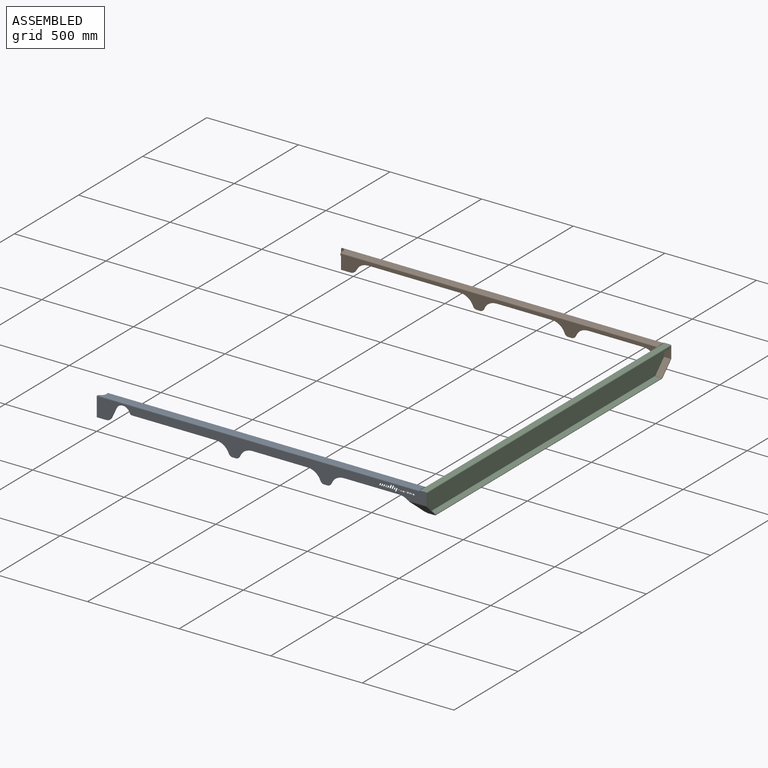
[diagram: assembled view]
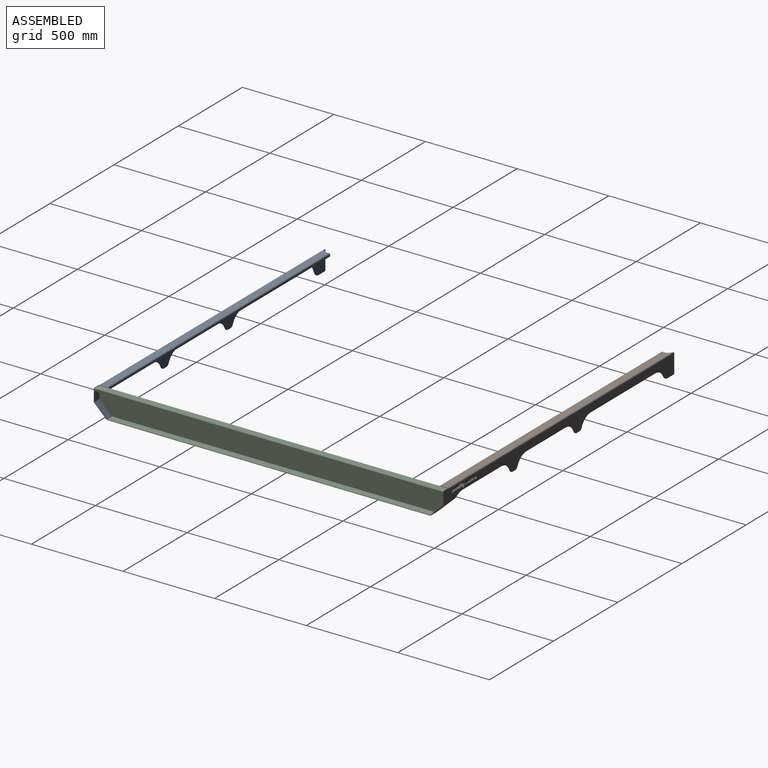
[diagram: assembled view, second angle]
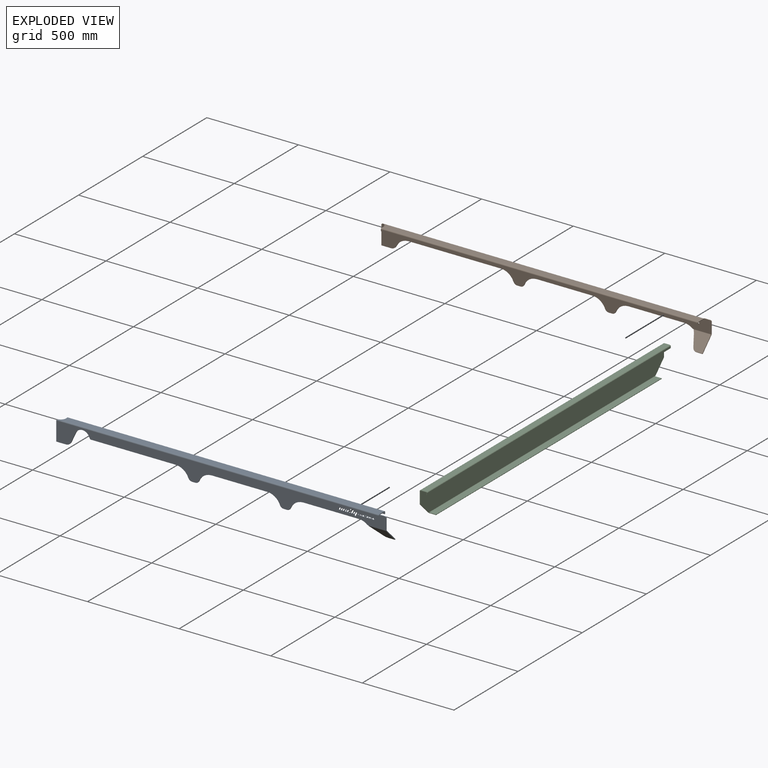
[diagram: exploded view]
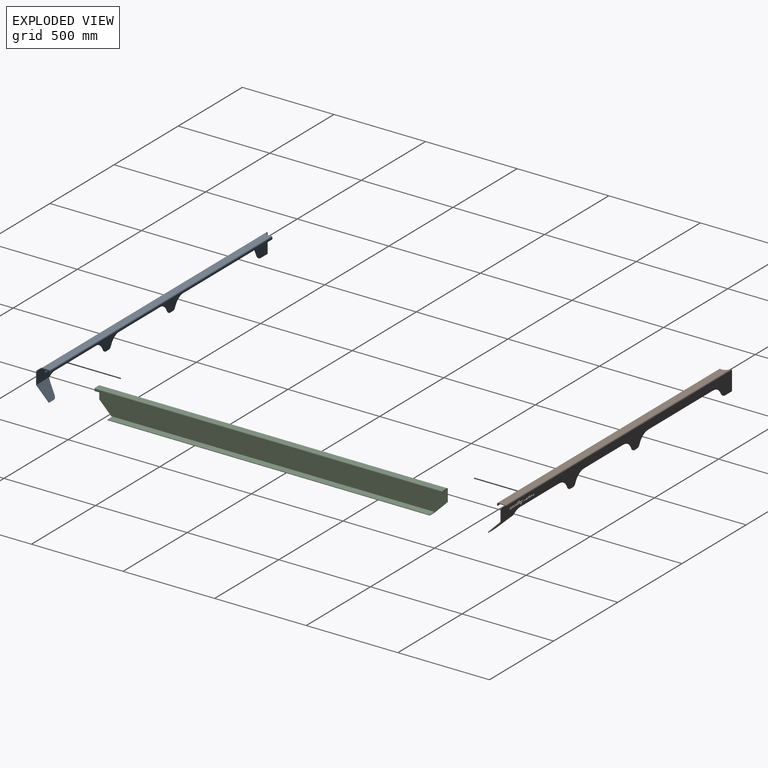
[diagram: exploded view, second angle]
ASSEMBLY  parts=3 mates=2
PART A: 165 faces, bbox 1800x72.8x140 mm
  f0: plane 4.65x4mm, normal (0,0,-1), area 18.6mm2, adj f2,f3,f114,f162
  f1: plane 34.75x4mm, normal (0,0,1), area 139mm2, adj f2,f3,f133,f136
  f2: plane 1800x110mm, normal (0,-1,0), area 93159mm2, adj f0,f1,f4,f5,f6,f7,f8,f9
  f3: plane 1800x110mm, normal (0,1,0), area 93159mm2, adj f0,f1,f4,f5,f6,f7,f8,f9
  f4: extruded ~45.17x7.42mm, area 338.8mm2, adj f2,f3,f5,f131
  f5: extruded ~44.75x4.94mm, area 261.1mm2, adj f2,f3,f4,f131
  f6: extruded ~25.06x7.64mm, area 225.7mm2, adj f2,f3,f7,f130
  f7: extruded ~37.44x10.56mm, area 397.8mm2, adj f2,f3,f6,f8
  f8: plane 4x1.42mm, normal (-1,0,0.1), area 5.7mm2, adj f2,f3,f7,f9
  f9: extruded ~8.24x4mm, area 40.2mm2, adj f2,f3,f8,f10
  f10: extruded ~25.04x4mm, area 126.9mm2, adj f2,f3,f9,f11
  f11: extruded ~12.85x7.68mm, area 122.4mm2, adj f2,f3,f10,f130
  f12: plane 4x1mm, normal (-0.91,0,0.42), area 4.4mm2, adj f2,f3,f13,f129
  f13: extruded ~4x1.27mm, area 6mm2, adj f2,f3,f12,f14
  f14: plane 4x1.06mm, normal (-0.91,0,0.42), area 4.7mm2, adj f2,f3,f13,f15
  f15: cylinder r=1.73mm len=4mm, axis (0,-1,0), area 7.9mm2, adj f2,f3,f14,f16
  f16: plane 5.79x4mm, normal (0,0,1), area 23.2mm2, adj f2,f3,f15,f17
  f17: cylinder r=0.7mm len=4mm, axis (0,-1,0), area 5.6mm2, adj f2,f3,f16,f18
  f18: plane 4x1.55mm, normal (0.91,0,-0.42), area 6.8mm2, adj f2,f3,f17,f19
  f19: cylinder r=2.08mm len=4mm, axis (0,-1,0), area 9.4mm2, adj f2,f3,f18,f129
  f20: cylinder r=0.84mm len=4mm, axis (0,-1,0), area 6.8mm2, adj f2,f3,f21,f128
  f21: plane 21.33x9.95mm, normal (0.91,0,-0.42), area 94.1mm2, adj f2,f3,f20,f22
  f22: cylinder r=0.84mm len=4mm, axis (0,-1,0), area 7.4mm2, adj f2,f3,f21,f23
  f23: plane 5.59x4mm, normal (-0.87,0,-0.5), area 25.8mm2, adj f2,f3,f22,f24
  f24: cylinder r=2.08mm len=4mm, axis (0,-1,0), area 8mm2, adj f2,f3,f23,f25
  f25: plane 13.89x6.48mm, normal (-0.91,0,0.42), area 61.3mm2, adj f2,f3,f24,f26
  f26: cylinder r=2.08mm len=4mm, axis (0,-1,0), area 9.4mm2, adj f2,f3,f25,f128
  f27: plane 4x1.23mm, normal (-0.91,0,0.42), area 5.4mm2, adj f2,f3,f28,f127
  f28: plane 7.62x4mm, normal (0,0,1), area 30.5mm2, adj f2,f3,f27,f29
  f29: cylinder r=0.84mm len=4mm, axis (0,-1,0), area 6.8mm2, adj f2,f3,f28,f30
  f30: plane 9.6x4.48mm, normal (0.91,0,-0.42), area 42.4mm2, adj f2,f3,f29,f31
  f31: cylinder r=2.08mm len=4mm, axis (0,-1,0), area 9.4mm2, adj f2,f3,f30,f32
  f32: plane 5.35x4mm, normal (0,0,-1), area 21.4mm2, adj f2,f3,f31,f33
  f33: cylinder r=0.84mm len=4mm, axis (0,-1,0), area 6.8mm2, adj f2,f3,f32,f34
  f34: plane 8.49x4mm, normal (-0.91,0,0.42), area 37.5mm2, adj f2,f3,f33,f127
  f35: cylinder r=2.08mm len=4mm, axis (0,-1,0), area 9.4mm2, adj f2,f3,f36,f126
  f36: plane 5.63x4mm, normal (0,0,1), area 22.5mm2, adj f2,f3,f35,f37
  f37: cylinder r=0.84mm len=4mm, axis (0,-1,0), area 6.8mm2, adj f2,f3,f36,f38
  f38: plane 21.33x9.95mm, normal (0.91,0,-0.42), area 94.1mm2, adj f2,f3,f37,f39
  f39: cylinder r=0.84mm len=4mm, axis (0,-1,0), area 7.4mm2, adj f2,f3,f38,f40
  f40: plane 5.59x4mm, normal (-0.87,0,-0.5), area 25.8mm2, adj f2,f3,f39,f41
  f41: cylinder r=2.08mm len=4mm, axis (0,-1,0), area 8mm2, adj f2,f3,f40,f126
  f42: plane 9.11x4.25mm, normal (0.91,0,-0.42), area 40.2mm2, adj f2,f3,f43,f125
  f43: cylinder r=2.08mm len=4mm, axis (0,-1,0), area 9.4mm2, adj f2,f3,f42,f44
  f44: plane 5.35x4mm, normal (0,0,-1), area 21.4mm2, adj f2,f3,f43,f45
  f45: cylinder r=0.84mm len=4mm, axis (0,-1,0), area 6.8mm2, adj f2,f3,f44,f46
  f46: plane 8.49x4mm, normal (-0.91,0,0.42), area 37.5mm2, adj f2,f3,f45,f47
  f47: extruded ~4x1.08mm, area 5.2mm2, adj f2,f3,f46,f48
  f48: plane 4x1.23mm, normal (-0.91,0,0.42), area 5.4mm2, adj f2,f3,f47,f49
  f49: plane 9.9x4mm, normal (0,0,1), area 39.6mm2, adj f2,f3,f48,f50
  f50: plane 4x1mm, normal (0.91,0,-0.42), area 4.4mm2, adj f2,f3,f49,f125
  f51: plane 9.11x4.25mm, normal (0.91,0,-0.42), area 40.2mm2, adj f2,f3,f52,f124
  f52: cylinder r=2.08mm len=4mm, axis (0,-1,0), area 9.4mm2, adj f2,f3,f51,f53
  f53: plane 5.35x4mm, normal (0,0,-1), area 21.4mm2, adj f2,f3,f52,f54
  f54: cylinder r=0.84mm len=4mm, axis (0,-1,0), area 6.8mm2, adj f2,f3,f53,f55
  f55: plane 9.6x4.48mm, normal (-0.91,0,0.42), area 42.4mm2, adj f2,f3,f54,f56
  f56: cylinder r=2.08mm len=4mm, axis (0,-1,0), area 9.4mm2, adj f2,f3,f55,f57
  f57: plane 7.62x4mm, normal (0,0,1), area 30.5mm2, adj f2,f3,f56,f58
  f58: plane 4x1mm, normal (0.91,0,-0.42), area 4.4mm2, adj f2,f3,f57,f124
  f59: cylinder r=0.84mm len=4mm, axis (0,-1,0), area 6.8mm2, adj f2,f3,f60,f123
  f60: plane 9.6x4.48mm, normal (-0.91,0,0.42), area 42.4mm2, adj f2,f3,f59,f61
  f61: cylinder r=2.08mm len=4mm, axis (0,-1,0), area 9.4mm2, adj f2,f3,f60,f62
  f62: plane 7.62x4mm, normal (0,0,1), area 30.5mm2, adj f2,f3,f61,f63
  f63: plane 4x1mm, normal (0.91,0,-0.42), area 4.4mm2, adj f2,f3,f62,f64
  f64: extruded ~4x1.27mm, area 6mm2, adj f2,f3,f63,f65
  f65: plane 4x2.75mm, normal (0.91,0,-0.42), area 12.1mm2, adj f2,f3,f64,f66
  f66: extruded ~4x1.08mm, area 5.2mm2, adj f2,f3,f65,f67
  f67: plane 4x1.24mm, normal (0.91,0,-0.42), area 5.5mm2, adj f2,f3,f66,f68
  f68: cylinder r=1.73mm len=4mm, axis (0,-1,0), area 7.2mm2, adj f2,f3,f67,f69
  f69: plane 4x1.94mm, normal (0.91,0,-0.42), area 8.6mm2, adj f2,f3,f68,f70
  f70: extruded ~4x1.08mm, area 5.2mm2, adj f2,f3,f69,f71
  f71: plane 4x1.23mm, normal (0.91,0,-0.42), area 5.4mm2, adj f2,f3,f70,f123
  f72: plane 4x2.75mm, normal (-0.91,0,0.42), area 12.1mm2, adj f2,f3,f73,f122
  f73: extruded ~4x1.08mm, area 5.2mm2, adj f2,f3,f72,f74
  f74: plane 4x1.23mm, normal (-0.91,0,0.42), area 5.4mm2, adj f2,f3,f73,f75
  f75: plane 7.62x4mm, normal (0,0,1), area 30.5mm2, adj f2,f3,f74,f76
  f76: cylinder r=0.84mm len=4mm, axis (0,-1,0), area 6.8mm2, adj f2,f3,f75,f77
  f77: plane 4.55x4mm, normal (0.91,0,-0.42), area 20.1mm2, adj f2,f3,f76,f78
  f78: cylinder r=1.73mm len=4mm, axis (0,-1,0), area 7.9mm2, adj f2,f3,f77,f79
  f79: plane 7.85x4mm, normal (0,0,-1), area 31.4mm2, adj f2,f3,f78,f80
  f80: plane 4x1mm, normal (-0.91,0,0.42), area 4.4mm2, adj f2,f3,f79,f122
  f81: plane 9.11x4.25mm, normal (0.91,0,-0.42), area 40.2mm2, adj f2,f3,f82,f121
  f82: cylinder r=2.08mm len=4mm, axis (0,-1,0), area 9.4mm2, adj f2,f3,f81,f83
  f83: plane 5.35x4mm, normal (0,0,-1), area 21.4mm2, adj f2,f3,f82,f84
  f84: cylinder r=0.84mm len=4mm, axis (0,-1,0), area 6.8mm2, adj f2,f3,f83,f85
  f85: plane 21.33x9.95mm, normal (-0.91,0,0.42), area 94.1mm2, adj f2,f3,f84,f86
  f86: cylinder r=0.84mm len=4mm, axis (0,-1,0), area 7.4mm2, adj f2,f3,f85,f87
  f87: plane 5.33x4mm, normal (0.87,0,0.5), area 24.6mm2, adj f2,f3,f86,f88
  f88: cylinder r=2.08mm len=4mm, axis (0,-1,0), area 8mm2, adj f2,f3,f87,f89
  f89: plane 4x2.15mm, normal (0.91,0,-0.42), area 9.5mm2, adj f2,f3,f88,f90
  f90: cylinder r=0.84mm len=4mm, axis (0,-1,0), area 5.4mm2, adj f2,f3,f89,f91
  f91: plane 4x1.07mm, normal (0.91,0,-0.42), area 4.7mm2, adj f2,f3,f90,f121
  f92: plane 4x1.23mm, normal (-0.91,0,0.42), area 5.4mm2, adj f2,f3,f93,f120
  f93: plane 7.62x4mm, normal (0,0,1), area 30.5mm2, adj f2,f3,f92,f94
  f94: cylinder r=0.84mm len=4mm, axis (0,-1,0), area 6.8mm2, adj f2,f3,f93,f95
  f95: plane 9.6x4.48mm, normal (0.91,0,-0.42), area 42.4mm2, adj f2,f3,f94,f96
  f96: cylinder r=2.08mm len=4mm, axis (0,-1,0), area 9.4mm2, adj f2,f3,f95,f97
  f97: plane 5.35x4mm, normal (0,0,-1), area 21.4mm2, adj f2,f3,f96,f98
  f98: cylinder r=0.84mm len=4mm, axis (0,-1,0), area 6.8mm2, adj f2,f3,f97,f99
  f99: plane 8.49x4mm, normal (-0.91,0,0.42), area 37.5mm2, adj f2,f3,f98,f120
  f100: cylinder r=40mm len=74.3mm, axis (0,-1,0), area 383mm2, adj f2,f3,f119,f132
  f101: plane 460.87x4mm, normal (0,0,-1), area 1843.5mm2, adj f2,f3,f102,f132
  f102: cylinder r=75mm len=69.72mm, axis (0,-1,0), area 358mm2, adj f2,f3,f101,f103
  f103: cylinder r=20mm len=18.59mm, axis (0,-1,0), area 95.5mm2, adj f2,f3,f102,f104
  f104: plane 20.33x4mm, normal (0,0,-1), area 81.3mm2, adj f2,f3,f103,f105
  f105: cylinder r=20mm len=18.59mm, axis (0,-1,0), area 95.5mm2, adj f2,f3,f104,f106
  f106: cylinder r=75mm len=69.72mm, axis (0,-1,0), area 358mm2, adj f2,f3,f105,f107
  f107: plane 303.03x4mm, normal (0,0,-1), area 1212.1mm2, adj f2,f3,f106,f108
  f108: cylinder r=75mm len=69.72mm, axis (0,-1,0), area 358mm2, adj f2,f3,f107,f109
  f109: cylinder r=20mm len=18.59mm, axis (0,-1,0), area 95.5mm2, adj f2,f3,f108,f110
  f110: plane 20.33x4mm, normal (0,0,-1), area 81.3mm2, adj f2,f3,f109,f111
  f111: cylinder r=20mm len=18.59mm, axis (0,-1,0), area 95.5mm2, adj f2,f3,f110,f112
  f112: cylinder r=75mm len=69.72mm, axis (0,-1,0), area 358mm2, adj f2,f3,f111,f113
  f113: plane 303.03x4mm, normal (0,0,-1), area 1212.1mm2, adj f2,f3,f112,f114
  f114: cylinder r=75mm len=48.17mm, axis (0,-1,0), area 209.2mm2, adj f0,f2,f3,f113
  f115: plane 62.51x4mm, normal (1,0,0), area 250.1mm2, adj f2,f3,f133,f161
  f116: plane 104x4mm, normal (-1,0,0), area 416mm2, adj f2,f3,f117,f150
  f117: plane 53.62x4mm, normal (0,0,-1), area 214.5mm2, adj f2,f3,f116,f118
  f118: cylinder r=30mm len=27.11mm, axis (0,-1,0), area 135.3mm2, adj f2,f3,f117,f119
  f119: plane 55x26.09mm, normal (0.9,0,-0.43), area 243.5mm2, adj f2,f3,f100,f118
  f120: extruded ~4x1.08mm, area 5.2mm2, adj f2,f3,f92,f99
  f121: extruded ~4x1.27mm, area 6mm2, adj f2,f3,f81,f91
  f122: extruded ~4x1.27mm, area 6mm2, adj f2,f3,f72,f80
  f123: plane 7.62x4mm, normal (0,0,-1), area 30.5mm2, adj f2,f3,f59,f71
  f124: extruded ~4x1.27mm, area 6mm2, adj f2,f3,f51,f58
  f125: extruded ~4x1.27mm, area 6mm2, adj f2,f3,f42,f50
  f126: plane 13.89x6.48mm, normal (-0.91,0,0.42), area 61.3mm2, adj f2,f3,f35,f41
  f127: extruded ~4x1.08mm, area 5.2mm2, adj f2,f3,f27,f34
  f128: plane 5.63x4mm, normal (0,0,1), area 22.5mm2, adj f2,f3,f20,f26
  f129: plane 7.62x4mm, normal (0,0,-1), area 30.5mm2, adj f2,f3,f12,f19
  f130: extruded ~10.35x4.23mm, area 84.9mm2, adj f2,f3,f6,f11
  f131: plane 4x1.36mm, normal (1,0,-0.1), area 5.5mm2, adj f2,f3,f4,f5
  f132: cylinder r=10mm len=9.54mm, axis (0,-1,0), area 50.6mm2, adj f2,f3,f100,f101
  f133: cylinder r=5mm len=5mm, axis (0,-1,0), area 31.4mm2, adj f1,f2,f3,f115
  f134: plane 4x2mm, normal (1,0,0), area 8mm2, adj f2,f3,f135,f151
  f135: cylinder r=0.12mm len=4mm, axis (0,1,0), area 1.6mm2, adj f2,f3,f134,f136
  f136: plane 8x4mm, normal (-1,0,0), area 32mm2, adj f1,f2,f3,f135
  f137: cylinder r=30.5mm len=38mm, axis (0,0,1), area 185.9mm2, adj f139,f140,f146,f150
  f138: plane 38x4mm, normal (1,0,0), area 152mm2, adj f139,f140,f147,f151
  f139: plane 1749.14x38mm, normal (0,0,1), area 65879mm2, adj f137,f138,f148,f152
  f140: plane 1749.14x38mm, normal (0,0,-1), area 65879mm2, adj f137,f138,f149,f153
  f141: plane 9x4mm, normal (1,0,0), area 36mm2, adj f142,f144,f145,f147
  f142: plane 1731.02x4mm, normal (0,0,-1), area 6924.1mm2, adj f141,f143,f144,f145
  f143: plane 9x4mm, normal (-1,0,0), area 36mm2, adj f142,f144,f145,f146
  f144: plane 1731.02x9mm, normal (0,1,0), area 15579.2mm2, adj f141,f142,f143,f148
  f145: plane 1731.02x9mm, normal (0,-1,0), area 15579.2mm2, adj f141,f142,f143,f149
  f146: plane 6x6mm, normal (-1,0,0), area 25.1mm2, adj f137,f143,f148,f149
  f147: plane 6x6mm, normal (1,0,0), area 25.1mm2, adj f138,f141,f148,f149
  f148: cylinder r=6mm len=1731.02mm, axis (-1,0,0), area 16314.5mm2, adj f139,f144,f146,f147
  f149: cylinder r=2mm len=1731.02mm, axis (-1,0,0), area 5438.2mm2, adj f140,f145,f146,f147
  f150: bspline ~10.86x6mm, area 52.1mm2, adj f116,f137,f152,f153
  f151: plane 6x6mm, normal (1,0,0), area 25.1mm2, adj f134,f138,f152,f153
  f152: cylinder r=6mm len=1760mm, axis (-1,0,0), area 16549.5mm2, adj f2,f139,f150,f151
  f153: cylinder r=2mm len=1760mm, axis (-1,0,0), area 5516.4mm2, adj f3,f140,f150,f151
  f154: extruded ~15.77x15.77mm, area 84.4mm2, adj f155,f159,f160,f162
  f155: plane 46.56x46.56mm, normal (-0.91,0.29,-0.29), area 271.3mm2, adj f154,f156,f159,f160
  f156: extruded ~21.08x14.4mm, area 112.9mm2, adj f155,f157,f159,f160
  f157: plane 36.29x2.83mm, normal (0,0.71,-0.71), area 145.1mm2, adj f156,f158,f159,f160
  f158: plane 71.07x71.07mm, normal (1,0,0), area 386mm2, adj f157,f159,f160,f161
  f159: plane 95.66x68.24mm, normal (0,-0.71,-0.71), area 6894.8mm2, adj f154,f155,f156,f157,f158,f163
  f160: plane 95.66x68.24mm, normal (0,0.71,0.71), area 6894.8mm2, adj f154,f155,f156,f157,f158,f164
  f161: plane 4.59x4.24mm, normal (1,0,0), area 12.6mm2, adj f115,f158,f163,f164
  f162: plane 4.59x4.24mm, normal (-1,0,0), area 12.6mm2, adj f0,f154,f163,f164
  f163: cylinder r=6mm len=95.66mm, axis (1,0,0), area 450.8mm2, adj f2,f159,f161,f162
  f164: cylinder r=2mm len=95.66mm, axis (1,0,0), area 150.3mm2, adj f3,f160,f161,f162
PART B: 163 faces, bbox 1800x72.8x140 mm
  f0: cylinder r=0.84mm len=4mm, axis (0,1,0), area 6.8mm2, adj f1,f128,f129,f130
  f1: plane 21.33x9.95mm, normal (-0.91,0,-0.42), area 94.1mm2, adj f0,f2,f129,f130
  f2: cylinder r=0.84mm len=4mm, axis (0,1,0), area 7.4mm2, adj f1,f3,f129,f130
  f3: plane 5.59x4mm, normal (0.87,0,-0.5), area 25.8mm2, adj f2,f4,f129,f130
  f4: cylinder r=2.08mm len=4mm, axis (0,1,0), area 8mm2, adj f3,f5,f129,f130
  f5: plane 13.89x6.48mm, normal (0.91,0,0.42), area 61.3mm2, adj f4,f6,f129,f130
  f6: cylinder r=2.08mm len=4mm, axis (0,1,0), area 9.4mm2, adj f5,f128,f129,f130
  f7: plane 7.62x4mm, normal (0,0,-1), area 30.5mm2, adj f8,f127,f129,f130
  f8: cylinder r=0.84mm len=4mm, axis (0,1,0), area 6.8mm2, adj f7,f9,f129,f130
  f9: plane 9.6x4.48mm, normal (0.91,0,0.42), area 42.4mm2, adj f8,f10,f129,f130
  f10: cylinder r=2.08mm len=4mm, axis (0,1,0), area 9.4mm2, adj f9,f11,f129,f130
  f11: plane 7.62x4mm, normal (0,0,1), area 30.5mm2, adj f10,f12,f129,f130
  f12: plane 4x1mm, normal (-0.91,0,-0.42), area 4.4mm2, adj f11,f13,f129,f130
  f13: extruded ~4x1.27mm, area 6mm2, adj f12,f14,f129,f130
  f14: plane 4x2.75mm, normal (-0.91,0,-0.42), area 12.1mm2, adj f13,f15,f129,f130
  f15: extruded ~4x1.08mm, area 5.2mm2, adj f14,f16,f129,f130
  f16: plane 4x1.24mm, normal (-0.91,0,-0.42), area 5.5mm2, adj f15,f17,f129,f130
  f17: cylinder r=1.73mm len=4mm, axis (0,1,0), area 7.2mm2, adj f16,f18,f129,f130
  f18: plane 4x1.94mm, normal (-0.91,0,-0.42), area 8.6mm2, adj f17,f19,f129,f130
  f19: extruded ~4x1.08mm, area 5.2mm2, adj f18,f127,f129,f130
  f20: extruded ~4x1.08mm, area 5.2mm2, adj f21,f126,f129,f130
  f21: plane 4x1.23mm, normal (0.91,0,0.42), area 5.4mm2, adj f20,f22,f129,f130
  f22: plane 7.62x4mm, normal (0,0,1), area 30.5mm2, adj f21,f23,f129,f130
  f23: cylinder r=0.84mm len=4mm, axis (0,1,0), area 6.8mm2, adj f22,f24,f129,f130
  f24: plane 9.6x4.48mm, normal (-0.91,0,-0.42), area 42.4mm2, adj f23,f25,f129,f130
  f25: cylinder r=2.08mm len=4mm, axis (0,1,0), area 9.4mm2, adj f24,f26,f129,f130
  f26: plane 5.35x4mm, normal (0,0,-1), area 21.4mm2, adj f25,f27,f129,f130
  f27: cylinder r=0.84mm len=4mm, axis (0,1,0), area 6.8mm2, adj f26,f126,f129,f130
  f28: cylinder r=2.08mm len=4mm, axis (0,1,0), area 9.4mm2, adj f29,f125,f129,f130
  f29: plane 5.63x4mm, normal (0,0,1), area 22.5mm2, adj f28,f30,f129,f130
  f30: cylinder r=0.84mm len=4mm, axis (0,1,0), area 6.8mm2, adj f29,f31,f129,f130
  f31: plane 21.33x9.95mm, normal (-0.91,0,-0.42), area 94.1mm2, adj f30,f32,f129,f130
  f32: cylinder r=0.84mm len=4mm, axis (0,1,0), area 7.4mm2, adj f31,f33,f129,f130
  f33: plane 5.59x4mm, normal (0.87,0,-0.5), area 25.8mm2, adj f32,f34,f129,f130
  f34: cylinder r=2.08mm len=4mm, axis (0,1,0), area 8mm2, adj f33,f125,f129,f130
  f35: extruded ~4x1.27mm, area 6mm2, adj f36,f124,f129,f130
  f36: plane 9.11x4.25mm, normal (-0.91,0,-0.42), area 40.2mm2, adj f35,f37,f129,f130
  f37: cylinder r=2.08mm len=4mm, axis (0,1,0), area 9.4mm2, adj f36,f38,f129,f130
  f38: plane 5.35x4mm, normal (0,0,-1), area 21.4mm2, adj f37,f39,f129,f130
  f39: cylinder r=0.84mm len=4mm, axis (0,1,0), area 6.8mm2, adj f38,f40,f129,f130
  f40: plane 9.6x4.48mm, normal (0.91,0,0.42), area 42.4mm2, adj f39,f41,f129,f130
  f41: cylinder r=2.08mm len=4mm, axis (0,1,0), area 9.4mm2, adj f40,f42,f129,f130
  f42: plane 7.62x4mm, normal (0,0,1), area 30.5mm2, adj f41,f124,f129,f130
  f43: extruded ~4x1.27mm, area 6mm2, adj f44,f123,f129,f130
  f44: plane 9.11x4.25mm, normal (-0.91,0,-0.42), area 40.2mm2, adj f43,f45,f129,f130
  f45: cylinder r=2.08mm len=4mm, axis (0,1,0), area 9.4mm2, adj f44,f46,f129,f130
  f46: plane 5.35x4mm, normal (0,0,-1), area 21.4mm2, adj f45,f47,f129,f130
  f47: cylinder r=0.84mm len=4mm, axis (0,1,0), area 6.8mm2, adj f46,f48,f129,f130
  f48: plane 8.49x4mm, normal (0.91,0,0.42), area 37.5mm2, adj f47,f49,f129,f130
  f49: extruded ~4x1.08mm, area 5.2mm2, adj f48,f50,f129,f130
  f50: plane 4x1.23mm, normal (0.91,0,0.42), area 5.4mm2, adj f49,f51,f129,f130
  f51: plane 9.9x4mm, normal (0,0,1), area 39.6mm2, adj f50,f123,f129,f130
  f52: plane 4x2.75mm, normal (0.91,0,0.42), area 12.1mm2, adj f53,f122,f129,f130
  f53: extruded ~4x1.08mm, area 5.2mm2, adj f52,f54,f129,f130
  f54: plane 4x1.23mm, normal (0.91,0,0.42), area 5.4mm2, adj f53,f55,f129,f130
  f55: plane 7.62x4mm, normal (0,0,1), area 30.5mm2, adj f54,f56,f129,f130
  f56: cylinder r=0.84mm len=4mm, axis (0,1,0), area 6.8mm2, adj f55,f57,f129,f130
  f57: plane 4.55x4mm, normal (-0.91,0,-0.42), area 20.1mm2, adj f56,f58,f129,f130
  f58: cylinder r=1.73mm len=4mm, axis (0,1,0), area 7.9mm2, adj f57,f59,f129,f130
  f59: plane 7.85x4mm, normal (0,0,-1), area 31.4mm2, adj f58,f60,f129,f130
  f60: plane 4x1mm, normal (0.91,0,0.42), area 4.4mm2, adj f59,f122,f129,f130
  f61: plane 4x1mm, normal (0.91,0,0.42), area 4.4mm2, adj f62,f121,f129,f130
  f62: extruded ~4x1.27mm, area 6mm2, adj f61,f63,f129,f130
  f63: plane 4x1.06mm, normal (0.91,0,0.42), area 4.7mm2, adj f62,f64,f129,f130
  f64: cylinder r=1.73mm len=4mm, axis (0,1,0), area 7.9mm2, adj f63,f65,f129,f130
  f65: plane 5.79x4mm, normal (0,0,1), area 23.2mm2, adj f64,f66,f129,f130
  f66: cylinder r=0.7mm len=4mm, axis (0,1,0), area 5.6mm2, adj f65,f67,f129,f130
  f67: plane 4x1.55mm, normal (-0.91,0,-0.42), area 6.8mm2, adj f66,f68,f129,f130
  f68: cylinder r=2.08mm len=4mm, axis (0,1,0), area 9.4mm2, adj f67,f121,f129,f130
  f69: extruded ~45.17x7.42mm, area 338.8mm2, adj f70,f120,f129,f130
  f70: extruded ~44.75x4.94mm, area 261.1mm2, adj f69,f120,f129,f130
  f71: extruded ~25.06x7.64mm, area 225.7mm2, adj f72,f119,f129,f130
  f72: extruded ~37.44x10.56mm, area 397.8mm2, adj f71,f73,f129,f130
  f73: plane 4x1.42mm, normal (1,0,0.1), area 5.7mm2, adj f72,f74,f129,f130
  f74: extruded ~8.24x4mm, area 40.2mm2, adj f73,f75,f129,f130
  f75: extruded ~25.04x4mm, area 126.9mm2, adj f74,f76,f129,f130
  f76: extruded ~12.85x7.68mm, area 122.4mm2, adj f75,f119,f129,f130
  f77: plane 9.11x4.25mm, normal (-0.91,0,-0.42), area 40.2mm2, adj f78,f118,f129,f130
  f78: cylinder r=2.08mm len=4mm, axis (0,1,0), area 9.4mm2, adj f77,f79,f129,f130
  f79: plane 5.35x4mm, normal (0,0,-1), area 21.4mm2, adj f78,f80,f129,f130
  f80: cylinder r=0.84mm len=4mm, axis (0,1,0), area 6.8mm2, adj f79,f81,f129,f130
  f81: plane 21.33x9.95mm, normal (0.91,0,0.42), area 94.1mm2, adj f80,f82,f129,f130
  f82: cylinder r=0.84mm len=4mm, axis (0,1,0), area 7.4mm2, adj f81,f83,f129,f130
  f83: plane 5.33x4mm, normal (-0.87,0,0.5), area 24.6mm2, adj f82,f84,f129,f130
  f84: cylinder r=2.08mm len=4mm, axis (0,1,0), area 8mm2, adj f83,f85,f129,f130
  f85: plane 4x2.15mm, normal (-0.91,0,-0.42), area 9.5mm2, adj f84,f86,f129,f130
  f86: cylinder r=0.84mm len=4mm, axis (0,1,0), area 5.4mm2, adj f85,f87,f129,f130
  f87: plane 4x1.07mm, normal (-0.91,0,-0.42), area 4.7mm2, adj f86,f118,f129,f130
  f88: extruded ~4x1.08mm, area 5.2mm2, adj f89,f117,f129,f130
  f89: plane 4x1.23mm, normal (0.91,0,0.42), area 5.4mm2, adj f88,f90,f129,f130
  f90: plane 7.62x4mm, normal (0,0,1), area 30.5mm2, adj f89,f91,f129,f130
  f91: cylinder r=0.84mm len=4mm, axis (0,1,0), area 6.8mm2, adj f90,f92,f129,f130
  f92: plane 9.6x4.48mm, normal (-0.91,0,-0.42), area 42.4mm2, adj f91,f93,f129,f130
  f93: cylinder r=2.08mm len=4mm, axis (0,1,0), area 9.4mm2, adj f92,f94,f129,f130
  f94: plane 5.35x4mm, normal (0,0,-1), area 21.4mm2, adj f93,f95,f129,f130
  f95: cylinder r=0.84mm len=4mm, axis (0,1,0), area 6.8mm2, adj f94,f117,f129,f130
  f96: cylinder r=75mm len=69.72mm, axis (0,1,0), area 358mm2, adj f97,f116,f129,f130
  f97: cylinder r=20mm len=18.59mm, axis (0,1,0), area 95.5mm2, adj f96,f98,f129,f130
  f98: plane 20.33x4mm, normal (0,0,-1), area 81.3mm2, adj f97,f99,f129,f130
  f99: cylinder r=20mm len=18.59mm, axis (0,1,0), area 95.5mm2, adj f98,f100,f129,f130
  f100: cylinder r=75mm len=69.72mm, axis (0,1,0), area 358mm2, adj f99,f101,f129,f130
  f101: plane 303.03x4mm, normal (0,0,-1), area 1212.1mm2, adj f100,f102,f129,f130
  f102: cylinder r=75mm len=69.72mm, axis (0,1,0), area 358mm2, adj f101,f103,f129,f130
  f103: cylinder r=20mm len=18.59mm, axis (0,1,0), area 95.5mm2, adj f102,f104,f129,f130
  f104: plane 20.33x4mm, normal (0,0,-1), area 81.3mm2, adj f103,f105,f129,f130
  f105: cylinder r=20mm len=18.59mm, axis (0,1,0), area 95.5mm2, adj f104,f106,f129,f130
  f106: cylinder r=75mm len=69.72mm, axis (0,1,0), area 358mm2, adj f105,f107,f129,f130
  f107: plane 503.03x4mm, normal (0,0,-1), area 2012.1mm2, adj f106,f108,f129,f130
  f108: cylinder r=75mm len=67.76mm, axis (0,1,0), area 338.4mm2, adj f107,f109,f129,f130
  f109: cylinder r=30mm len=27.11mm, axis (0,1,0), area 135.3mm2, adj f108,f110,f129,f130
  f110: plane 53.62x4mm, normal (0,0,-1), area 214.5mm2, adj f109,f111,f129,f130
  f111: plane 104x4mm, normal (-1,0,0), area 416mm2, adj f110,f129,f130,f148
  f112: plane 34.75x4mm, normal (0,0,1), area 139mm2, adj f129,f130,f131,f133
  f113: plane 62.51x4mm, normal (1,0,0), area 250.1mm2, adj f129,f130,f131,f159
  f114: plane 4.65x4mm, normal (0,0,-1), area 18.6mm2, adj f115,f129,f130,f160
  f115: cylinder r=75mm len=48.17mm, axis (0,1,0), area 209.2mm2, adj f114,f116,f129,f130
  f116: plane 303.03x4mm, normal (0,0,-1), area 1212.1mm2, adj f96,f115,f129,f130
  f117: plane 8.49x4mm, normal (0.91,0,0.42), area 37.5mm2, adj f88,f95,f129,f130
  f118: extruded ~4x1.27mm, area 6mm2, adj f77,f87,f129,f130
  f119: extruded ~10.35x4.23mm, area 84.9mm2, adj f71,f76,f129,f130
  f120: plane 4x1.36mm, normal (-1,0,-0.1), area 5.5mm2, adj f69,f70,f129,f130
  f121: plane 7.62x4mm, normal (0,0,-1), area 30.5mm2, adj f61,f68,f129,f130
  f122: extruded ~4x1.27mm, area 6mm2, adj f52,f60,f129,f130
  f123: plane 4x1mm, normal (-0.91,0,-0.42), area 4.4mm2, adj f43,f51,f129,f130
  f124: plane 4x1mm, normal (-0.91,0,-0.42), area 4.4mm2, adj f35,f42,f129,f130
  f125: plane 13.89x6.48mm, normal (0.91,0,0.42), area 61.3mm2, adj f28,f34,f129,f130
  f126: plane 8.49x4mm, normal (0.91,0,0.42), area 37.5mm2, adj f20,f27,f129,f130
  f127: plane 4x1.23mm, normal (-0.91,0,-0.42), area 5.4mm2, adj f7,f19,f129,f130
  f128: plane 5.63x4mm, normal (0,0,1), area 22.5mm2, adj f0,f6,f129,f130
  f129: plane 1800x110mm, normal (0,1,0), area 95679.6mm2, adj f0,f1,f2,f3,f4,f5,f6,f7
  f130: plane 1800x110mm, normal (0,-1,0), area 95679.6mm2, adj f0,f1,f2,f3,f4,f5,f6,f7
  f131: cylinder r=5mm len=5mm, axis (0,1,0), area 31.4mm2, adj f112,f113,f129,f130
  f132: plane 4x2mm, normal (1,0,0), area 8mm2, adj f129,f130,f134,f149
  f133: plane 8x4mm, normal (-1,0,0), area 32mm2, adj f112,f129,f130,f134
  f134: cylinder r=0.12mm len=4mm, axis (0,-1,0), area 1.6mm2, adj f129,f130,f132,f133
  f135: cylinder r=30.5mm len=38mm, axis (0,0,1), area 185.9mm2, adj f137,f138,f144,f148
  f136: plane 38x4mm, normal (1,0,0), area 152mm2, adj f137,f138,f145,f149
  f137: plane 1749.14x38mm, normal (0,0,1), area 65879mm2, adj f135,f136,f146,f150
  f138: plane 1749.14x38mm, normal (0,0,-1), area 65879mm2, adj f135,f136,f147,f151
  f139: plane 9x4mm, normal (1,0,0), area 36mm2, adj f141,f142,f143,f145
  f140: plane 9x4mm, normal (-1,0,0), area 36mm2, adj f141,f142,f143,f144
  f141: plane 1731.02x4mm, normal (0,0,-1), area 6924.1mm2, adj f139,f140,f142,f143
  f142: plane 1731.02x9mm, normal (0,-1,0), area 15579.2mm2, adj f139,f140,f141,f146
  f143: plane 1731.02x9mm, normal (0,1,0), area 15579.2mm2, adj f139,f140,f141,f147
  f144: plane 6x6mm, normal (-1,0,0), area 25.1mm2, adj f135,f140,f146,f147
  f145: plane 6x6mm, normal (1,0,0), area 25.1mm2, adj f136,f139,f146,f147
  f146: cylinder r=6mm len=1731.02mm, axis (-1,0,0), area 16314.5mm2, adj f137,f142,f144,f145
  f147: cylinder r=2mm len=1731.02mm, axis (-1,0,0), area 5438.2mm2, adj f138,f143,f144,f145
  f148: bspline ~10.86x6mm, area 51.9mm2, adj f111,f135,f150,f151
  f149: plane 6x6mm, normal (1,0,0), area 25.1mm2, adj f132,f136,f150,f151
  f150: cylinder r=6mm len=1760mm, axis (-1,0,0), area 16549.5mm2, adj f129,f137,f148,f149
  f151: cylinder r=2mm len=1760mm, axis (-1,0,0), area 5516.5mm2, adj f130,f138,f148,f149
  f152: plane 46.56x46.56mm, normal (-0.91,-0.29,-0.29), area 271.3mm2, adj f153,f156,f157,f158
  f153: extruded ~15.77x15.77mm, area 84.4mm2, adj f152,f157,f158,f160
  f154: plane 71.07x71.07mm, normal (1,0,0), area 386mm2, adj f155,f157,f158,f159
  f155: plane 36.29x2.83mm, normal (0,-0.71,-0.71), area 145.1mm2, adj f154,f156,f157,f158
  f156: extruded ~21.08x14.4mm, area 112.9mm2, adj f152,f155,f157,f158
  f157: plane 95.66x68.24mm, normal (0,0.71,-0.71), area 6894.8mm2, adj f152,f153,f154,f155,f156,f161
  f158: plane 95.66x68.24mm, normal (0,-0.71,0.71), area 6894.8mm2, adj f152,f153,f154,f155,f156,f162
  f159: plane 4.59x4.24mm, normal (1,0,0), area 12.6mm2, adj f113,f154,f161,f162
  f160: plane 4.59x4.24mm, normal (-1,0,0), area 12.6mm2, adj f114,f153,f161,f162
  f161: cylinder r=6mm len=95.66mm, axis (1,0,0), area 450.8mm2, adj f129,f157,f159,f160
  f162: cylinder r=2mm len=95.66mm, axis (1,0,0), area 150.3mm2, adj f130,f158,f159,f160
PART C: 32 faces, bbox 1900x40x140 mm
  f0: plane 1760x3mm, normal (0,-1,0), area 5280mm2, adj f1,f2,f3,f4
  f1: plane 35x3mm, normal (1,0,0), area 105mm2, adj f0,f3,f4,f29
  f2: plane 35x3mm, normal (-1,0,0), area 105mm2, adj f0,f3,f4,f28
  f3: plane 1760x35mm, normal (0,0,1), area 61600mm2, adj f0,f1,f2,f31
  f4: plane 1760x35mm, normal (0,0,-1), area 61600mm2, adj f0,f1,f2,f30
  f5: plane 65x65mm, normal (0.71,0,-0.71), area 275.8mm2, adj f6,f9,f10,f29
  f6: plane 65x3mm, normal (1,0,0), area 195mm2, adj f5,f9,f10,f25
  f7: plane 65x3mm, normal (-1,0,0), area 195mm2, adj f8,f9,f10,f24
  f8: plane 65x65mm, normal (-0.71,0,-0.71), area 275.8mm2, adj f7,f9,f10,f28
  f9: plane 1900x130mm, normal (0,-1,0), area 242775mm2, adj f5,f6,f7,f8,f27,f31
  f10: plane 1900x130mm, normal (0,1,0), area 242775mm2, adj f5,f6,f7,f8,f26,f30
  f11: plane 30x3mm, normal (1,0,0), area 90mm2, adj f13,f14,f21,f25
  f12: plane 30x3mm, normal (-1,0,0), area 90mm2, adj f13,f14,f20,f24
  f13: plane 1900x30mm, normal (0,0,-1), area 57000mm2, adj f11,f12,f23,f27
  f14: plane 1900x30mm, normal (0,0,1), area 57000mm2, adj f11,f12,f22,f26
  f15: plane 10x3mm, normal (1,0,0), area 30mm2, adj f16,f18,f19,f21
  f16: plane 1900x3mm, normal (0,0,-1), area 5700mm2, adj f15,f17,f18,f19
  f17: plane 10x3mm, normal (-1,0,0), area 30mm2, adj f16,f18,f19,f20
  f18: plane 1900x10mm, normal (0,1,0), area 19000mm2, adj f15,f16,f17,f23
  f19: plane 1900x10mm, normal (0,-1,0), area 19000mm2, adj f15,f16,f17,f22
  f20: plane 5x5mm, normal (-1,0,0), area 16.5mm2, adj f12,f17,f22,f23
  f21: plane 5x5mm, normal (1,0,0), area 16.5mm2, adj f11,f15,f22,f23
  f22: cylinder r=5mm len=1900mm, axis (-1,0,0), area 14922.6mm2, adj f14,f19,f20,f21
  f23: cylinder r=2mm len=1900mm, axis (-1,0,0), area 5969mm2, adj f13,f18,f20,f21
  f24: plane 5x5mm, normal (-1,0,0), area 16.5mm2, adj f7,f12,f26,f27
  f25: plane 5x5mm, normal (1,0,0), area 16.5mm2, adj f6,f11,f26,f27
  f26: cylinder r=5mm len=1900mm, axis (-1,0,0), area 14922.6mm2, adj f10,f14,f24,f25
  f27: cylinder r=2mm len=1900mm, axis (-1,0,0), area 5969mm2, adj f9,f13,f24,f25
  f28: bspline ~5x5mm, area 23.2mm2, adj f2,f8,f30,f31
  f29: bspline ~5x5mm, area 23.2mm2, adj f1,f5,f30,f31
  f30: cylinder r=5mm len=1770mm, axis (-1,0,0), area 13851.6mm2, adj f4,f10,f28,f29
  f31: cylinder r=2mm len=1770mm, axis (-1,0,0), area 5540.6mm2, adj f3,f9,f28,f29
PLACE A at identity
PLACE B t=(0,1608,0)mm
PLACE C rot(axis=(0,0,1),90deg) t=(1760,4,-30)mm
MATE fastened C.f7 <-> A.f3  axis (0,-1,0) through (1760,4,105)mm
MATE fastened B.f130 <-> C.f11  axis (0,-1,0) through (1795,1904,110)mm
